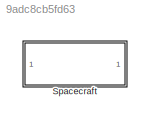
MODEL slx_9adc8cb5fd63
KIND model
CONFIG AbsTol = auto
CONFIG EnableMultiTasking = off
CONFIG FixedStep = auto
CONFIG MaxStep = auto
CONFIG MinStep = auto
CONFIG RelTol = 1e-3
CONFIG SampleTimeConstraint = Unconstrained
CONFIG SolverName = ode15s
CONFIG StartTime = 0.0
CONFIG StopTime = 10
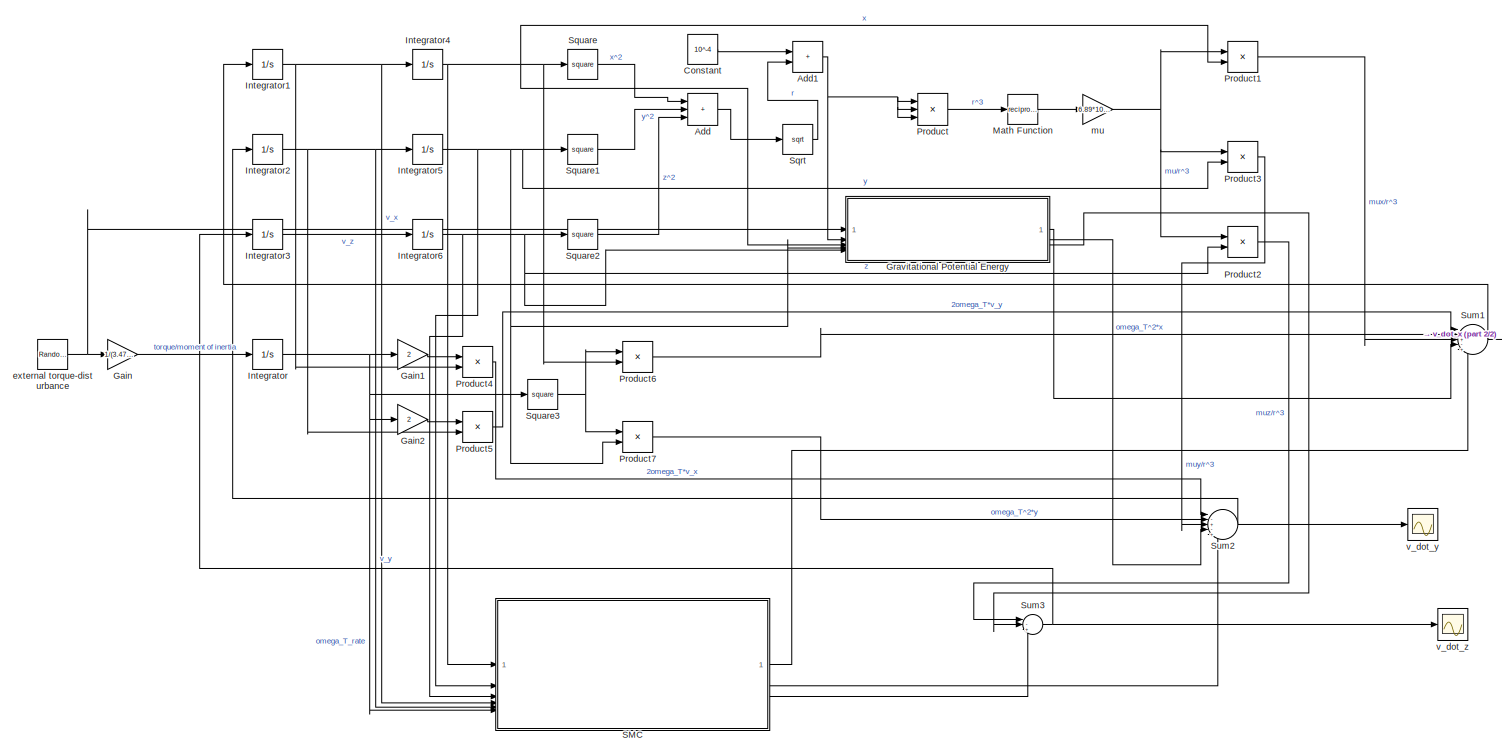
[diagram: Spacecraft - part 1/2, most of the canvas]
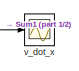
[diagram: Spacecraft - part 2/2, middle right region]
BLOCK [SubSystem] Spacecraft
BLOCK [Sum] Spacecraft/Add
  IconShape = rectangular
  Inputs = +++
BLOCK [Sum] Spacecraft/Add1
  IconShape = rectangular
BLOCK [Constant] Spacecraft/Constant
  Value = 10^-4
BLOCK [Gain] Spacecraft/Gain
  Gain = 1/(3.47*10^26)
BLOCK [Gain] Spacecraft/Gain1
  Gain = 2
BLOCK [Gain] Spacecraft/Gain2
  Gain = 2
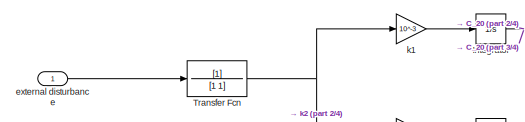
[diagram: Spacecraft/Gravitational Potential Energy - part 1/4, top left region]
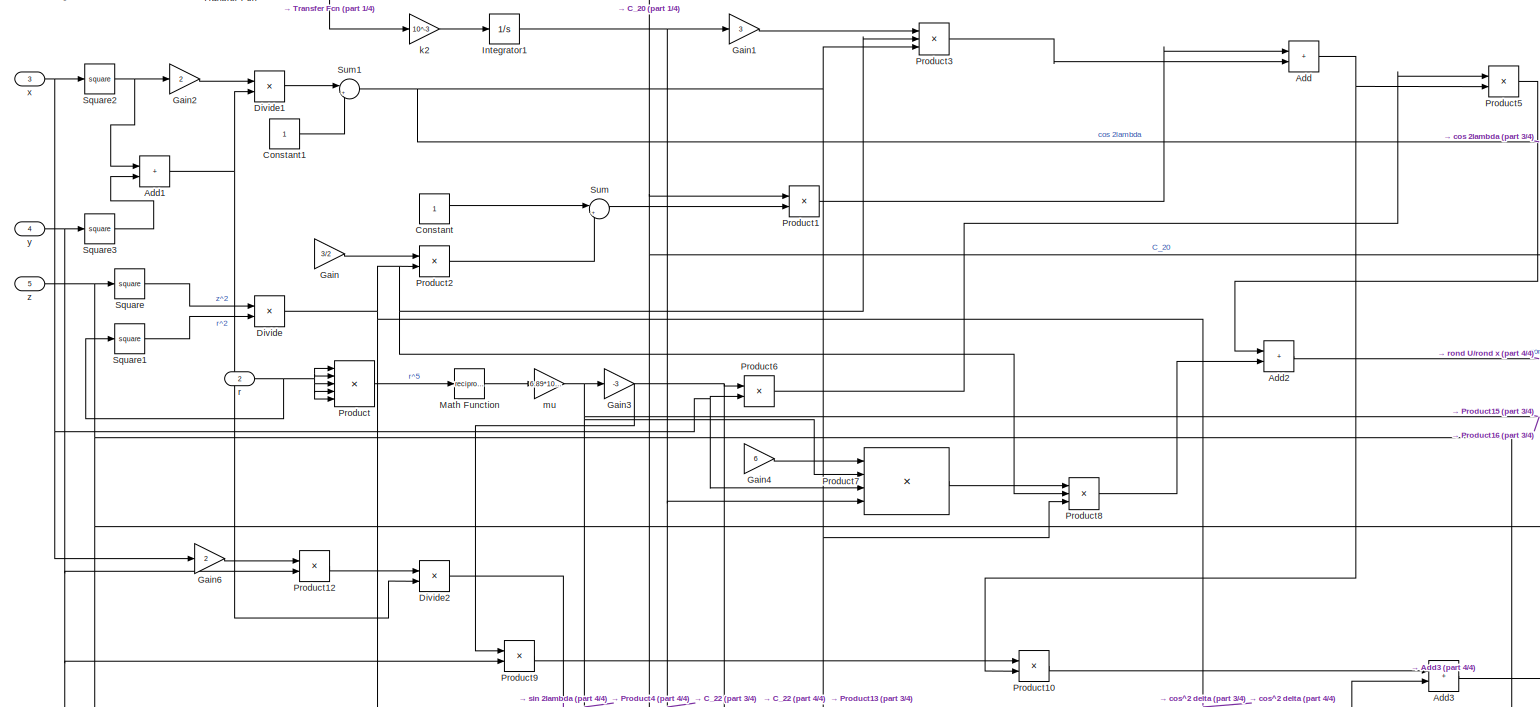
[diagram: Spacecraft/Gravitational Potential Energy - part 2/4, middle left region]
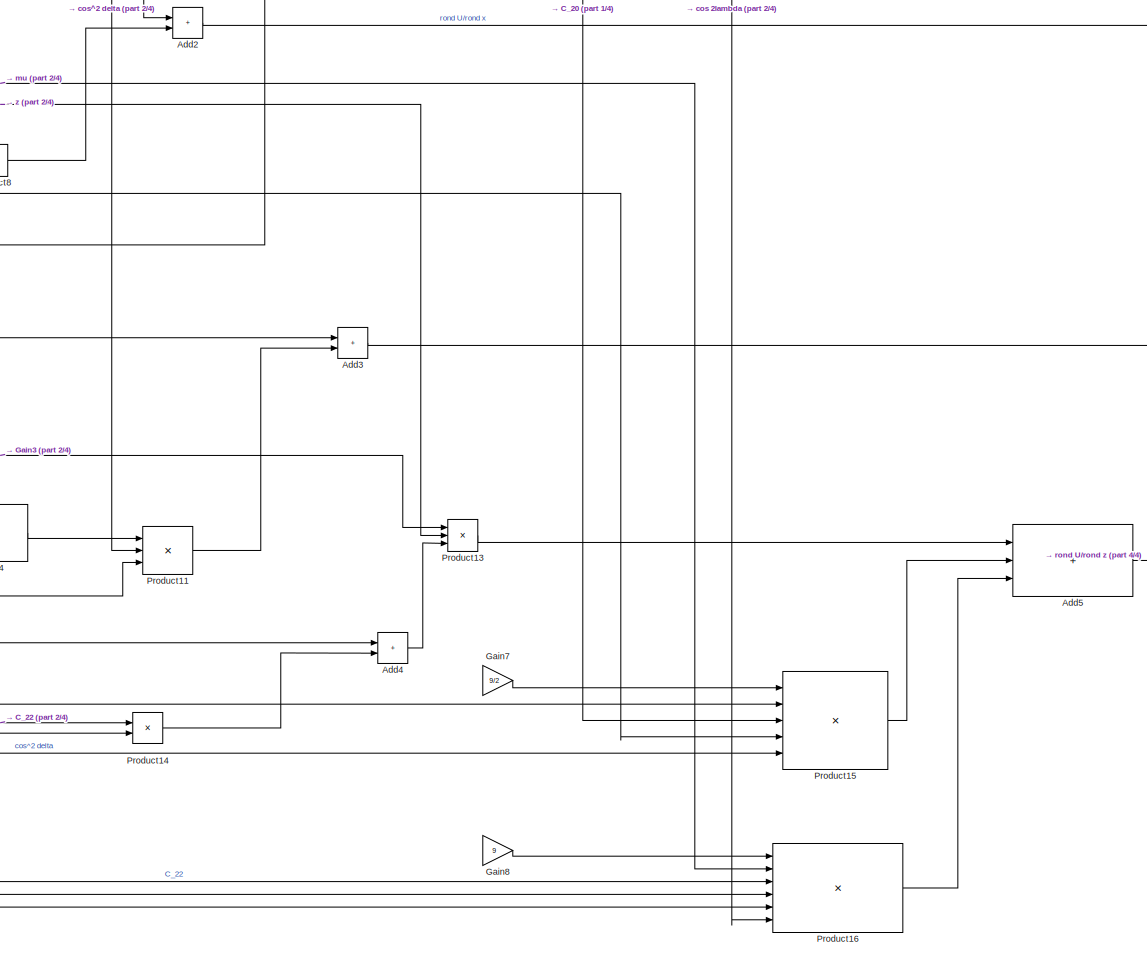
[diagram: Spacecraft/Gravitational Potential Energy - part 3/4, middle right region]
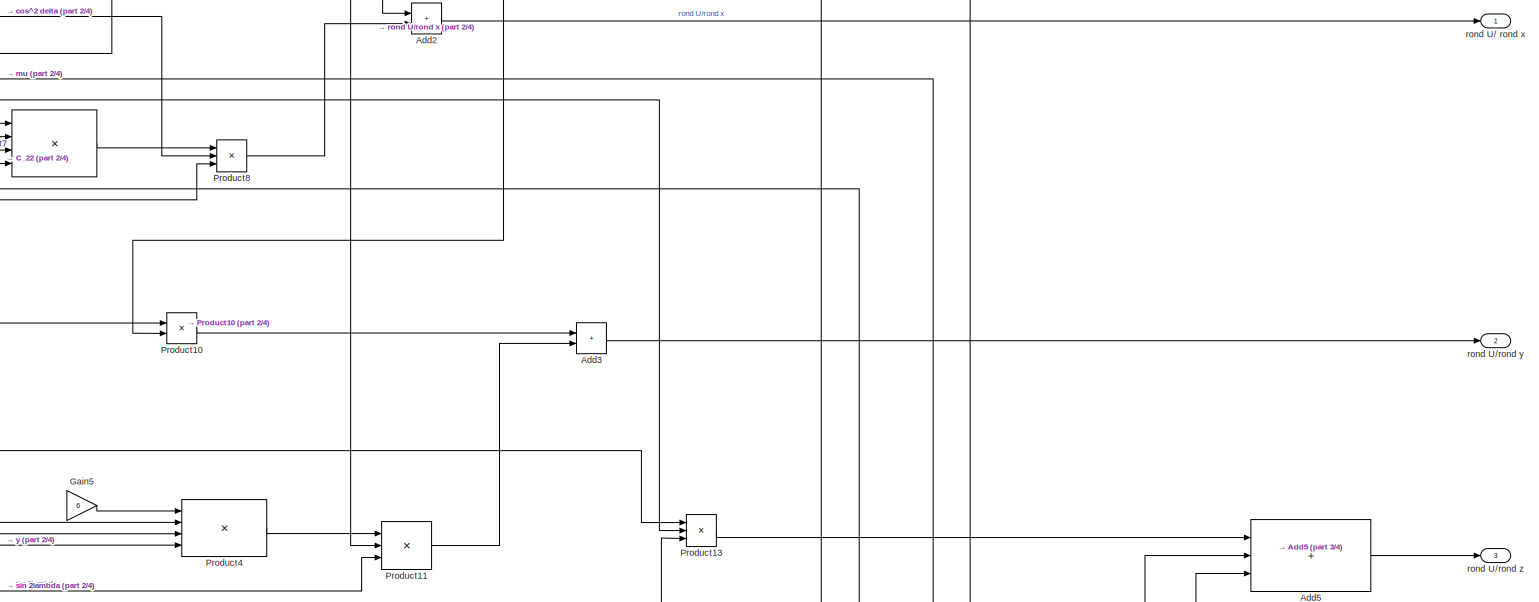
[diagram: Spacecraft/Gravitational Potential Energy - part 4/4, middle right region]
BLOCK [SubSystem] Spacecraft/Gravitational Potential Energy
BLOCK [Sum] Spacecraft/Gravitational Potential Energy/Add
  IconShape = rectangular
BLOCK [Sum] Spacecraft/Gravitational Potential Energy/Add1
  IconShape = rectangular
BLOCK [Sum] Spacecraft/Gravitational Potential Energy/Add2
  IconShape = rectangular
BLOCK [Sum] Spacecraft/Gravitational Potential Energy/Add3
  IconShape = rectangular
BLOCK [Sum] Spacecraft/Gravitational Potential Energy/Add4
  IconShape = rectangular
BLOCK [Sum] Spacecraft/Gravitational Potential Energy/Add5
  IconShape = rectangular
  Inputs = +++
BLOCK [Constant] Spacecraft/Gravitational Potential Energy/Constant
BLOCK [Constant] Spacecraft/Gravitational Potential Energy/Constant1
BLOCK [Product] Spacecraft/Gravitational Potential Energy/Divide
  Inputs = */
BLOCK [Product] Spacecraft/Gravitational Potential Energy/Divide1
  Inputs = */
BLOCK [Product] Spacecraft/Gravitational Potential Energy/Divide2
  Inputs = */
BLOCK [Gain] Spacecraft/Gravitational Potential Energy/Gain
  Gain = 3/2
BLOCK [Gain] Spacecraft/Gravitational Potential Energy/Gain1
  Gain = 3
BLOCK [Gain] Spacecraft/Gravitational Potential Energy/Gain2
  Gain = 2
BLOCK [Gain] Spacecraft/Gravitational Potential Energy/Gain3
  Gain = -3
BLOCK [Gain] Spacecraft/Gravitational Potential Energy/Gain4
  Gain = 6
BLOCK [Gain] Spacecraft/Gravitational Potential Energy/Gain5
  Gain = 6
BLOCK [Gain] Spacecraft/Gravitational Potential Energy/Gain6
  Gain = 2
BLOCK [Gain] Spacecraft/Gravitational Potential Energy/Gain7
  Gain = 9/2
BLOCK [Gain] Spacecraft/Gravitational Potential Energy/Gain8
  Gain = 9
BLOCK [Integrator] Spacecraft/Gravitational Potential Energy/Integrator
  InitialCondition = -0.1
BLOCK [Integrator] Spacecraft/Gravitational Potential Energy/Integrator1
  InitialCondition = 0.02
BLOCK [Math] Spacecraft/Gravitational Potential Energy/Math Function
  Operator = reciprocal
BLOCK [Product] Spacecraft/Gravitational Potential Energy/Product
  Inputs = 5
BLOCK [Product] Spacecraft/Gravitational Potential Energy/Product1
BLOCK [Product] Spacecraft/Gravitational Potential Energy/Product10
BLOCK [Product] Spacecraft/Gravitational Potential Energy/Product11
  Inputs = 3
BLOCK [Product] Spacecraft/Gravitational Potential Energy/Product12
BLOCK [Product] Spacecraft/Gravitational Potential Energy/Product13
  Inputs = 3
BLOCK [Product] Spacecraft/Gravitational Potential Energy/Product14
BLOCK [Product] Spacecraft/Gravitational Potential Energy/Product15
  Inputs = 5
BLOCK [Product] Spacecraft/Gravitational Potential Energy/Product16
  Inputs = 6
BLOCK [Product] Spacecraft/Gravitational Potential Energy/Product2
BLOCK [Product] Spacecraft/Gravitational Potential Energy/Product3
  Inputs = 3
BLOCK [Product] Spacecraft/Gravitational Potential Energy/Product4
  Inputs = 4
BLOCK [Product] Spacecraft/Gravitational Potential Energy/Product5
BLOCK [Product] Spacecraft/Gravitational Potential Energy/Product6
BLOCK [Product] Spacecraft/Gravitational Potential Energy/Product7
  Inputs = 4
BLOCK [Product] Spacecraft/Gravitational Potential Energy/Product8
  Inputs = 3
BLOCK [Product] Spacecraft/Gravitational Potential Energy/Product9
BLOCK [Math] Spacecraft/Gravitational Potential Energy/Square
  Operator = square
BLOCK [Math] Spacecraft/Gravitational Potential Energy/Square1
  Operator = square
BLOCK [Math] Spacecraft/Gravitational Potential Energy/Square2
  Operator = square
BLOCK [Math] Spacecraft/Gravitational Potential Energy/Square3
  Operator = square
BLOCK [Sum] Spacecraft/Gravitational Potential Energy/Sum
  Inputs = |+-
BLOCK [Sum] Spacecraft/Gravitational Potential Energy/Sum1
  Inputs = |+-
BLOCK [TransferFcn] Spacecraft/Gravitational Potential Energy/Transfer Fcn
  Denominator = [1 1]
BLOCK [Inport] Spacecraft/Gravitational Potential Energy/external disturbance
BLOCK [Gain] Spacecraft/Gravitational Potential Energy/k1
  Gain = 10^-3
BLOCK [Gain] Spacecraft/Gravitational Potential Energy/k2
  Gain = 10^-3
BLOCK [Gain] Spacecraft/Gravitational Potential Energy/mu
  Gain = 6.89*10^6
BLOCK [Inport] Spacecraft/Gravitational Potential Energy/r
  Port = 2
BLOCK [Outport] Spacecraft/Gravitational Potential Energy/rond U// rond x
BLOCK [Outport] Spacecraft/Gravitational Potential Energy/rond U//rond y
  Port = 2
BLOCK [Outport] Spacecraft/Gravitational Potential Energy/rond U//rond z
  Port = 3
BLOCK [Inport] Spacecraft/Gravitational Potential Energy/x
  Port = 3
BLOCK [Inport] Spacecraft/Gravitational Potential Energy/y
  Port = 4
BLOCK [Inport] Spacecraft/Gravitational Potential Energy/z
  Port = 5
BLOCK [Integrator] Spacecraft/Integrator
  InitialCondition = 4.17*10^-6
BLOCK [Integrator] Spacecraft/Integrator1
BLOCK [Integrator] Spacecraft/Integrator2
BLOCK [Integrator] Spacecraft/Integrator3
BLOCK [Integrator] Spacecraft/Integrator4
  InitialCondition = 1
BLOCK [Integrator] Spacecraft/Integrator5
  InitialCondition = 1
BLOCK [Integrator] Spacecraft/Integrator6
  InitialCondition = 1
BLOCK [Math] Spacecraft/Math Function
  Operator = reciprocal
BLOCK [Product] Spacecraft/Product
  Inputs = 3
BLOCK [Product] Spacecraft/Product1
BLOCK [Product] Spacecraft/Product2
BLOCK [Product] Spacecraft/Product3
BLOCK [Product] Spacecraft/Product4
BLOCK [Product] Spacecraft/Product5
BLOCK [Product] Spacecraft/Product6
BLOCK [Product] Spacecraft/Product7
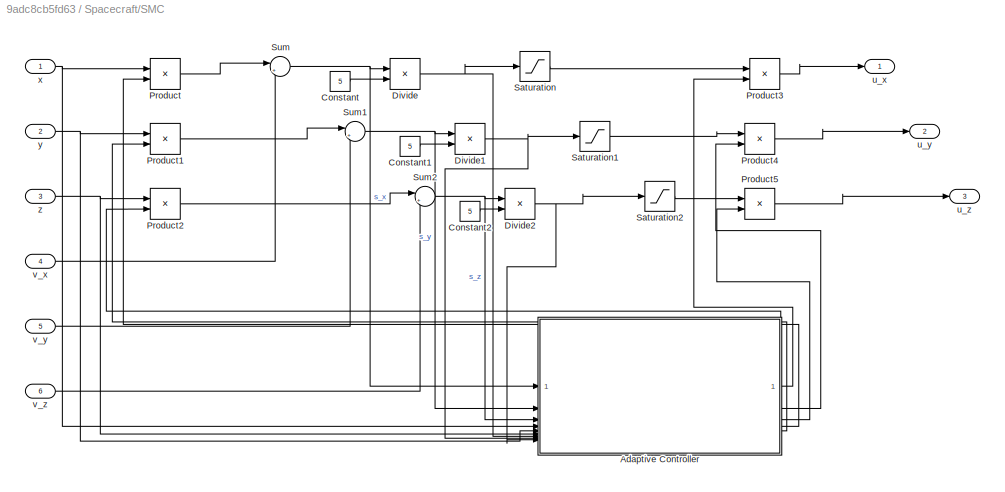
BLOCK [SubSystem] Spacecraft/SMC
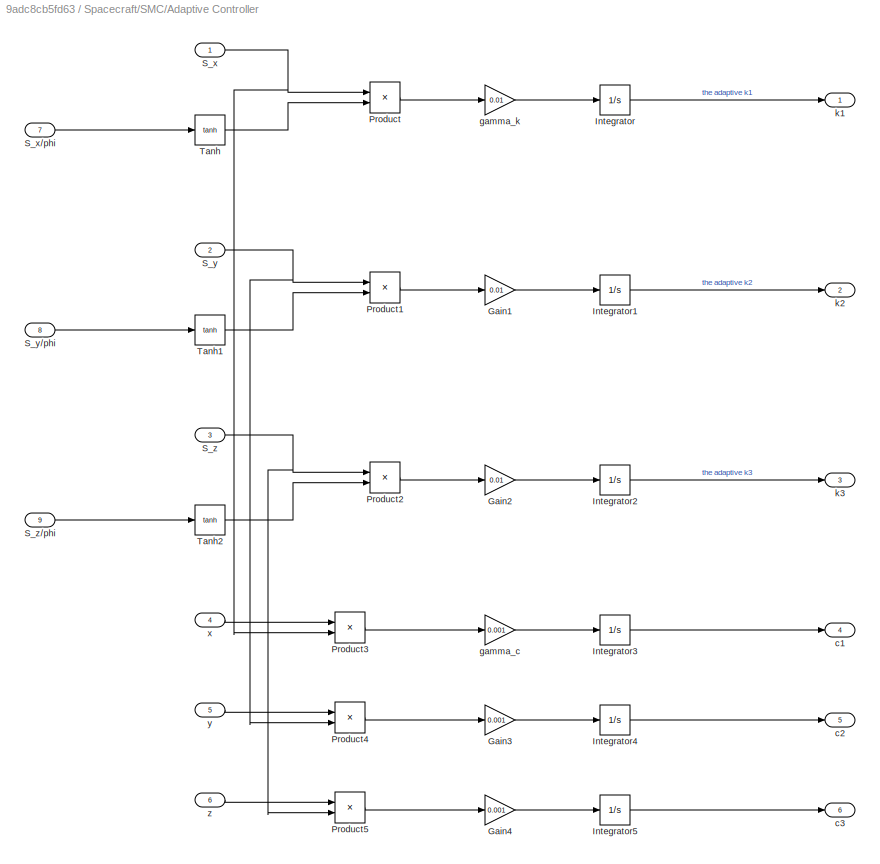
BLOCK [SubSystem] Spacecraft/SMC/Adaptive Controller
BLOCK [Gain] Spacecraft/SMC/Adaptive Controller/Gain1
  Gain = 0.01
BLOCK [Gain] Spacecraft/SMC/Adaptive Controller/Gain2
  Gain = 0.01
BLOCK [Gain] Spacecraft/SMC/Adaptive Controller/Gain3
  Gain = 0.001
BLOCK [Gain] Spacecraft/SMC/Adaptive Controller/Gain4
  Gain = 0.001
BLOCK [Integrator] Spacecraft/SMC/Adaptive Controller/Integrator
  InitialCondition = -10
BLOCK [Integrator] Spacecraft/SMC/Adaptive Controller/Integrator1
  InitialCondition = -10
BLOCK [Integrator] Spacecraft/SMC/Adaptive Controller/Integrator2
  InitialCondition = -10
BLOCK [Integrator] Spacecraft/SMC/Adaptive Controller/Integrator3
  InitialCondition = 4
BLOCK [Integrator] Spacecraft/SMC/Adaptive Controller/Integrator4
  InitialCondition = 4
BLOCK [Integrator] Spacecraft/SMC/Adaptive Controller/Integrator5
  InitialCondition = 4
BLOCK [Product] Spacecraft/SMC/Adaptive Controller/Product
BLOCK [Product] Spacecraft/SMC/Adaptive Controller/Product1
BLOCK [Product] Spacecraft/SMC/Adaptive Controller/Product2
BLOCK [Product] Spacecraft/SMC/Adaptive Controller/Product3
BLOCK [Product] Spacecraft/SMC/Adaptive Controller/Product4
BLOCK [Product] Spacecraft/SMC/Adaptive Controller/Product5
BLOCK [Inport] Spacecraft/SMC/Adaptive Controller/S_x
BLOCK [Inport] Spacecraft/SMC/Adaptive Controller/S_x//phi
  Port = 7
BLOCK [Inport] Spacecraft/SMC/Adaptive Controller/S_y
  Port = 2
BLOCK [Inport] Spacecraft/SMC/Adaptive Controller/S_y//phi
  Port = 8
BLOCK [Inport] Spacecraft/SMC/Adaptive Controller/S_z
  Port = 3
BLOCK [Inport] Spacecraft/SMC/Adaptive Controller/S_z//phi
  Port = 9
BLOCK [Trigonometry] Spacecraft/SMC/Adaptive Controller/Tanh
  Operator = tanh
BLOCK [Trigonometry] Spacecraft/SMC/Adaptive Controller/Tanh1
  Operator = tanh
BLOCK [Trigonometry] Spacecraft/SMC/Adaptive Controller/Tanh2
  Operator = tanh
BLOCK [Outport] Spacecraft/SMC/Adaptive Controller/c1
  Port = 4
BLOCK [Outport] Spacecraft/SMC/Adaptive Controller/c2
  Port = 5
BLOCK [Outport] Spacecraft/SMC/Adaptive Controller/c3
  Port = 6
BLOCK [Gain] Spacecraft/SMC/Adaptive Controller/gamma_c
  Gain = 0.001
BLOCK [Gain] Spacecraft/SMC/Adaptive Controller/gamma_k
  Gain = 0.01
BLOCK [Outport] Spacecraft/SMC/Adaptive Controller/k1
BLOCK [Outport] Spacecraft/SMC/Adaptive Controller/k2
  Port = 2
BLOCK [Outport] Spacecraft/SMC/Adaptive Controller/k3
  Port = 3
BLOCK [Inport] Spacecraft/SMC/Adaptive Controller/x
  Port = 4
BLOCK [Inport] Spacecraft/SMC/Adaptive Controller/y
  Port = 5
BLOCK [Inport] Spacecraft/SMC/Adaptive Controller/z
  Port = 6
BLOCK [Constant] Spacecraft/SMC/Constant
  Value = 5
BLOCK [Constant] Spacecraft/SMC/Constant1
  Value = 5
BLOCK [Constant] Spacecraft/SMC/Constant2
  Value = 5
BLOCK [Product] Spacecraft/SMC/Divide
  Inputs = */
BLOCK [Product] Spacecraft/SMC/Divide1
  Inputs = */
BLOCK [Product] Spacecraft/SMC/Divide2
  Inputs = */
BLOCK [Product] Spacecraft/SMC/Product
BLOCK [Product] Spacecraft/SMC/Product1
BLOCK [Product] Spacecraft/SMC/Product2
BLOCK [Product] Spacecraft/SMC/Product3
BLOCK [Product] Spacecraft/SMC/Product4
BLOCK [Product] Spacecraft/SMC/Product5
BLOCK [Saturate] Spacecraft/SMC/Saturation
  LowerLimit = -1
  UpperLimit = +1
BLOCK [Saturate] Spacecraft/SMC/Saturation1
  LowerLimit = -1
  UpperLimit = +1
BLOCK [Saturate] Spacecraft/SMC/Saturation2
  LowerLimit = -1
  UpperLimit = +1
BLOCK [Sum] Spacecraft/SMC/Sum
  Inputs = |++
BLOCK [Sum] Spacecraft/SMC/Sum1
  Inputs = |++
BLOCK [Sum] Spacecraft/SMC/Sum2
  Inputs = |++
BLOCK [Outport] Spacecraft/SMC/u_x
BLOCK [Outport] Spacecraft/SMC/u_y
  Port = 2
BLOCK [Outport] Spacecraft/SMC/u_z
  Port = 3
BLOCK [Inport] Spacecraft/SMC/v_x
  Port = 4
BLOCK [Inport] Spacecraft/SMC/v_y
  Port = 5
BLOCK [Inport] Spacecraft/SMC/v_z
  Port = 6
BLOCK [Inport] Spacecraft/SMC/x
BLOCK [Inport] Spacecraft/SMC/y
  Port = 2
BLOCK [Inport] Spacecraft/SMC/z
  Port = 3
BLOCK [Sqrt] Spacecraft/Sqrt
BLOCK [Math] Spacecraft/Square
  Operator = square
BLOCK [Math] Spacecraft/Square1
  Operator = square
BLOCK [Math] Spacecraft/Square2
  Operator = square
BLOCK [Math] Spacecraft/Square3
  Operator = square
BLOCK [Sum] Spacecraft/Sum1
  Inputs = |++-++
BLOCK [Sum] Spacecraft/Sum2
  Inputs = |-+-++
BLOCK [Sum] Spacecraft/Sum3
  Inputs = |-++
BLOCK [RandomNumber] Spacecraft/external torque-disturbance
  SampleTime = 0.1
  Variance = 10^-12
BLOCK [Gain] Spacecraft/mu
  Gain = 6.89*10^6
BLOCK [Scope] Spacecraft/v_dot_x
  Floating = off
  NumInputPorts = 1
  ScopeSpecificationString = Simulink.scopes.TimeScopeBlockCfg('CurrentConfiguration', extmgr.ConfigurationSet(extmgr.Configuration('Core','General UI',true),extmgr.Configuration('Core','Source UI',true),extmgr.Configuration('Sources','WiredSimulink',true),extmgr.Configuration('Visuals','Time Domain',true,'SerializedDisplays',{struct('MinYLimReal','-9305362.17024','MaxYLimReal','50488203.84115','YLabelReal','','MinYLimMag',' ...<+1429ch>
BLOCK [Scope] Spacecraft/v_dot_y
  Floating = off
  NumInputPorts = 1
  ScopeSpecificationString = Simulink.scopes.TimeScopeBlockCfg('CurrentConfiguration', extmgr.ConfigurationSet(extmgr.Configuration('Core','General UI',true),extmgr.Configuration('Core','Source UI',true),extmgr.Configuration('Sources','WiredSimulink',true,'DataLoggingVariableName','ScopeData1'),extmgr.Configuration('Visuals','Time Domain',true,'SerializedDisplays',{struct('MinYLimReal','-9305360.75381','MaxYLimReal','50488204...<+1468ch>
BLOCK [Scope] Spacecraft/v_dot_z
  Floating = off
  NumInputPorts = 1
  ScopeSpecificationString = Simulink.scopes.TimeScopeBlockCfg('CurrentConfiguration', extmgr.ConfigurationSet(extmgr.Configuration('Core','General UI',true),extmgr.Configuration('Core','Source UI',true),extmgr.Configuration('Sources','WiredSimulink',true,'DataLoggingVariableName','ScopeData2'),extmgr.Configuration('Visuals','Time Domain',true,'SerializedDisplays',{struct('MinYLimReal','-9291880.36499','MaxYLimReal','50484687...<+1468ch>
NET Spacecraft/Add1:1 -> Spacecraft/Gravitational Potential Energy:2, Spacecraft/Product:1, Spacecraft/Product:2, Spacecraft/Product:3
LINE Spacecraft/Add:1 -> Spacecraft/Sqrt:1
LINE Spacecraft/Constant:1 -> Spacecraft/Add1:1
LINE Spacecraft/Gain1:1 -> Spacecraft/Product4:1
LINE Spacecraft/Gain2:1 -> Spacecraft/Product5:1
LINE Spacecraft/Gain:1 -> Spacecraft/Integrator:1
NET Spacecraft/Gravitational Potential Energy/Add1:1 -> Spacecraft/Gravitational Potential Energy/Divide1:2, Spacecraft/Gravitational Potential Energy/Divide2:2
LINE Spacecraft/Gravitational Potential Energy/Add2:1 -> Spacecraft/Gravitational Potential Energy/rond U// rond x:1
LINE Spacecraft/Gravitational Potential Energy/Add3:1 -> Spacecraft/Gravitational Potential Energy/rond U//rond y:1
LINE Spacecraft/Gravitational Potential Energy/Add4:1 -> Spacecraft/Gravitational Potential Energy/Product13:3
LINE Spacecraft/Gravitational Potential Energy/Add5:1 -> Spacecraft/Gravitational Potential Energy/rond U//rond z:1
NET Spacecraft/Gravitational Potential Energy/Add:1 -> Spacecraft/Gravitational Potential Energy/Product10:2, Spacecraft/Gravitational Potential Energy/Product5:2
LINE Spacecraft/Gravitational Potential Energy/Constant1:1 -> Spacecraft/Gravitational Potential Energy/Sum1:2
LINE Spacecraft/Gravitational Potential Energy/Constant:1 -> Spacecraft/Gravitational Potential Energy/Sum:1
LINE Spacecraft/Gravitational Potential Energy/Divide1:1 -> Spacecraft/Gravitational Potential Energy/Sum1:1
LINE Spacecraft/Gravitational Potential Energy/Divide2:1 -> Spacecraft/Gravitational Potential Energy/Product11:3
NET Spacecraft/Gravitational Potential Energy/Divide:1 -> Spacecraft/Gravitational Potential Energy/Product11:2, Spacecraft/Gravitational Potential Energy/Product15:5, Spacecraft/Gravitational Potential Energy/Product16:5, Spacecraft/Gravitational Potential Energy/Product2:2, Spacecraft/Gravitational Potential Energy/Product3:2, Spacecraft/Gravitational Potential Energy/Product8:2
LINE Spacecraft/Gravitational Potential Energy/Gain1:1 -> Spacecraft/Gravitational Potential Energy/Product3:1
LINE Spacecraft/Gravitational Potential Energy/Gain2:1 -> Spacecraft/Gravitational Potential Energy/Divide1:1
NET Spacecraft/Gravitational Potential Energy/Gain3:1 -> Spacecraft/Gravitational Potential Energy/Product13:1, Spacecraft/Gravitational Potential Energy/Product6:1, Spacecraft/Gravitational Potential Energy/Product9:1
LINE Spacecraft/Gravitational Potential Energy/Gain4:1 -> Spacecraft/Gravitational Potential Energy/Product7:1
LINE Spacecraft/Gravitational Potential Energy/Gain5:1 -> Spacecraft/Gravitational Potential Energy/Product4:1
LINE Spacecraft/Gravitational Potential Energy/Gain6:1 -> Spacecraft/Gravitational Potential Energy/Product12:1
LINE Spacecraft/Gravitational Potential Energy/Gain7:1 -> Spacecraft/Gravitational Potential Energy/Product15:1
LINE Spacecraft/Gravitational Potential Energy/Gain8:1 -> Spacecraft/Gravitational Potential Energy/Product16:1
LINE Spacecraft/Gravitational Potential Energy/Gain:1 -> Spacecraft/Gravitational Potential Energy/Product2:1
NET Spacecraft/Gravitational Potential Energy/Integrator1:1 -> Spacecraft/Gravitational Potential Energy/Gain1:1, Spacecraft/Gravitational Potential Energy/Product14:1, Spacecraft/Gravitational Potential Energy/Product16:3, Spacecraft/Gravitational Potential Energy/Product4:3, Spacecraft/Gravitational Potential Energy/Product7:4
NET Spacecraft/Gravitational Potential Energy/Integrator:1 -> Spacecraft/Gravitational Potential Energy/Add4:1, Spacecraft/Gravitational Potential Energy/Product15:3, Spacecraft/Gravitational Potential Energy/Product1:1
LINE Spacecraft/Gravitational Potential Energy/Math Function:1 -> Spacecraft/Gravitational Potential Energy/mu:1
LINE Spacecraft/Gravitational Potential Energy/Product10:1 -> Spacecraft/Gravitational Potential Energy/Add3:1
LINE Spacecraft/Gravitational Potential Energy/Product11:1 -> Spacecraft/Gravitational Potential Energy/Add3:2
LINE Spacecraft/Gravitational Potential Energy/Product12:1 -> Spacecraft/Gravitational Potential Energy/Divide2:1
LINE Spacecraft/Gravitational Potential Energy/Product13:1 -> Spacecraft/Gravitational Potential Energy/Add5:1
LINE Spacecraft/Gravitational Potential Energy/Product14:1 -> Spacecraft/Gravitational Potential Energy/Add4:2
LINE Spacecraft/Gravitational Potential Energy/Product15:1 -> Spacecraft/Gravitational Potential Energy/Add5:2
LINE Spacecraft/Gravitational Potential Energy/Product16:1 -> Spacecraft/Gravitational Potential Energy/Add5:3
LINE Spacecraft/Gravitational Potential Energy/Product1:1 -> Spacecraft/Gravitational Potential Energy/Add:1
LINE Spacecraft/Gravitational Potential Energy/Product2:1 -> Spacecraft/Gravitational Potential Energy/Sum:2
LINE Spacecraft/Gravitational Potential Energy/Product3:1 -> Spacecraft/Gravitational Potential Energy/Add:2
LINE Spacecraft/Gravitational Potential Energy/Product4:1 -> Spacecraft/Gravitational Potential Energy/Product11:1
LINE Spacecraft/Gravitational Potential Energy/Product5:1 -> Spacecraft/Gravitational Potential Energy/Add2:1
LINE Spacecraft/Gravitational Potential Energy/Product6:1 -> Spacecraft/Gravitational Potential Energy/Product5:1
LINE Spacecraft/Gravitational Potential Energy/Product7:1 -> Spacecraft/Gravitational Potential Energy/Product8:1
LINE Spacecraft/Gravitational Potential Energy/Product8:1 -> Spacecraft/Gravitational Potential Energy/Add2:2
LINE Spacecraft/Gravitational Potential Energy/Product9:1 -> Spacecraft/Gravitational Potential Energy/Product10:1
LINE Spacecraft/Gravitational Potential Energy/Product:1 -> Spacecraft/Gravitational Potential Energy/Math Function:1
LINE Spacecraft/Gravitational Potential Energy/Square1:1 -> Spacecraft/Gravitational Potential Energy/Divide:2
NET Spacecraft/Gravitational Potential Energy/Square2:1 -> Spacecraft/Gravitational Potential Energy/Add1:1, Spacecraft/Gravitational Potential Energy/Gain2:1
LINE Spacecraft/Gravitational Potential Energy/Square3:1 -> Spacecraft/Gravitational Potential Energy/Add1:2
LINE Spacecraft/Gravitational Potential Energy/Square:1 -> Spacecraft/Gravitational Potential Energy/Divide:1
NET Spacecraft/Gravitational Potential Energy/Sum1:1 -> Spacecraft/Gravitational Potential Energy/Product14:2, Spacecraft/Gravitational Potential Energy/Product16:6, Spacecraft/Gravitational Potential Energy/Product3:3, Spacecraft/Gravitational Potential Energy/Product8:3
LINE Spacecraft/Gravitational Potential Energy/Sum:1 -> Spacecraft/Gravitational Potential Energy/Product1:2
NET Spacecraft/Gravitational Potential Energy/Transfer Fcn:1 -> Spacecraft/Gravitational Potential Energy/k1:1, Spacecraft/Gravitational Potential Energy/k2:1
LINE Spacecraft/Gravitational Potential Energy/external disturbance:1 -> Spacecraft/Gravitational Potential Energy/Transfer Fcn:1
LINE Spacecraft/Gravitational Potential Energy/k1:1 -> Spacecraft/Gravitational Potential Energy/Integrator:1
LINE Spacecraft/Gravitational Potential Energy/k2:1 -> Spacecraft/Gravitational Potential Energy/Integrator1:1
NET Spacecraft/Gravitational Potential Energy/mu:1 -> Spacecraft/Gravitational Potential Energy/Gain3:1, Spacecraft/Gravitational Potential Energy/Product15:2, Spacecraft/Gravitational Potential Energy/Product16:2, Spacecraft/Gravitational Potential Energy/Product4:2, Spacecraft/Gravitational Potential Energy/Product7:2
NET Spacecraft/Gravitational Potential Energy/r:1 -> Spacecraft/Gravitational Potential Energy/Product:1, Spacecraft/Gravitational Potential Energy/Product:2, Spacecraft/Gravitational Potential Energy/Product:3, Spacecraft/Gravitational Potential Energy/Product:4, Spacecraft/Gravitational Potential Energy/Product:5, Spacecraft/Gravitational Potential Energy/Square1:1
NET Spacecraft/Gravitational Potential Energy/x:1 -> Spacecraft/Gravitational Potential Energy/Gain6:1, Spacecraft/Gravitational Potential Energy/Product6:2, Spacecraft/Gravitational Potential Energy/Product7:3, Spacecraft/Gravitational Potential Energy/Square2:1
NET Spacecraft/Gravitational Potential Energy/y:1 -> Spacecraft/Gravitational Potential Energy/Product12:2, Spacecraft/Gravitational Potential Energy/Product4:4, Spacecraft/Gravitational Potential Energy/Product9:2, Spacecraft/Gravitational Potential Energy/Square3:1
NET Spacecraft/Gravitational Potential Energy/z:1 -> Spacecraft/Gravitational Potential Energy/Product13:2, Spacecraft/Gravitational Potential Energy/Product15:4, Spacecraft/Gravitational Potential Energy/Product16:4, Spacecraft/Gravitational Potential Energy/Square:1
LINE Spacecraft/Gravitational Potential Energy:1 -> Spacecraft/Sum1:4
LINE Spacecraft/Gravitational Potential Energy:2 -> Spacecraft/Sum2:4
LINE Spacecraft/Gravitational Potential Energy:3 -> Spacecraft/Sum3:2
NET Spacecraft/Integrator1:1 -> Spacecraft/Integrator4:1, Spacecraft/Product4:2, Spacecraft/SMC:4
NET Spacecraft/Integrator2:1 -> Spacecraft/Integrator5:1, Spacecraft/Product5:2, Spacecraft/SMC:5
LINE Spacecraft/Integrator3:1 -> Spacecraft/Integrator6:1
NET Spacecraft/Integrator4:1 -> Spacecraft/Gravitational Potential Energy:3, Spacecraft/Product1:2, Spacecraft/Product6:2, Spacecraft/SMC:1, Spacecraft/Square:1
NET Spacecraft/Integrator5:1 -> Spacecraft/Gravitational Potential Energy:4, Spacecraft/Product3:2, Spacecraft/Product7:2, Spacecraft/SMC:2, Spacecraft/Square1:1
NET Spacecraft/Integrator6:1 -> Spacecraft/Gravitational Potential Energy:5, Spacecraft/Product2:2, Spacecraft/SMC:3, Spacecraft/Square2:1
NET Spacecraft/Integrator:1 -> Spacecraft/Gain1:1, Spacecraft/Gain2:1, Spacecraft/SMC:6, Spacecraft/Square3:1
LINE Spacecraft/Math Function:1 -> Spacecraft/mu:1
LINE Spacecraft/Product1:1 -> Spacecraft/Sum1:3
LINE Spacecraft/Product2:1 -> Spacecraft/Sum3:1
LINE Spacecraft/Product3:1 -> Spacecraft/Sum2:3
LINE Spacecraft/Product4:1 -> Spacecraft/Sum2:1
LINE Spacecraft/Product5:1 -> Spacecraft/Sum1:1
LINE Spacecraft/Product6:1 -> Spacecraft/Sum1:2
LINE Spacecraft/Product7:1 -> Spacecraft/Sum2:2
LINE Spacecraft/Product:1 -> Spacecraft/Math Function:1
LINE Spacecraft/SMC/Adaptive Controller/Gain1:1 -> Spacecraft/SMC/Adaptive Controller/Integrator1:1
LINE Spacecraft/SMC/Adaptive Controller/Gain2:1 -> Spacecraft/SMC/Adaptive Controller/Integrator2:1
LINE Spacecraft/SMC/Adaptive Controller/Gain3:1 -> Spacecraft/SMC/Adaptive Controller/Integrator4:1
LINE Spacecraft/SMC/Adaptive Controller/Gain4:1 -> Spacecraft/SMC/Adaptive Controller/Integrator5:1
LINE Spacecraft/SMC/Adaptive Controller/Integrator1:1 -> Spacecraft/SMC/Adaptive Controller/k2:1
LINE Spacecraft/SMC/Adaptive Controller/Integrator2:1 -> Spacecraft/SMC/Adaptive Controller/k3:1
LINE Spacecraft/SMC/Adaptive Controller/Integrator3:1 -> Spacecraft/SMC/Adaptive Controller/c1:1
LINE Spacecraft/SMC/Adaptive Controller/Integrator4:1 -> Spacecraft/SMC/Adaptive Controller/c2:1
LINE Spacecraft/SMC/Adaptive Controller/Integrator5:1 -> Spacecraft/SMC/Adaptive Controller/c3:1
LINE Spacecraft/SMC/Adaptive Controller/Integrator:1 -> Spacecraft/SMC/Adaptive Controller/k1:1
LINE Spacecraft/SMC/Adaptive Controller/Product1:1 -> Spacecraft/SMC/Adaptive Controller/Gain1:1
LINE Spacecraft/SMC/Adaptive Controller/Product2:1 -> Spacecraft/SMC/Adaptive Controller/Gain2:1
LINE Spacecraft/SMC/Adaptive Controller/Product3:1 -> Spacecraft/SMC/Adaptive Controller/gamma_c:1
LINE Spacecraft/SMC/Adaptive Controller/Product4:1 -> Spacecraft/SMC/Adaptive Controller/Gain3:1
LINE Spacecraft/SMC/Adaptive Controller/Product5:1 -> Spacecraft/SMC/Adaptive Controller/Gain4:1
LINE Spacecraft/SMC/Adaptive Controller/Product:1 -> Spacecraft/SMC/Adaptive Controller/gamma_k:1
LINE Spacecraft/SMC/Adaptive Controller/S_x//phi:1 -> Spacecraft/SMC/Adaptive Controller/Tanh:1
NET Spacecraft/SMC/Adaptive Controller/S_x:1 -> Spacecraft/SMC/Adaptive Controller/Product3:2, Spacecraft/SMC/Adaptive Controller/Product:1
LINE Spacecraft/SMC/Adaptive Controller/S_y//phi:1 -> Spacecraft/SMC/Adaptive Controller/Tanh1:1
NET Spacecraft/SMC/Adaptive Controller/S_y:1 -> Spacecraft/SMC/Adaptive Controller/Product1:1, Spacecraft/SMC/Adaptive Controller/Product4:2
LINE Spacecraft/SMC/Adaptive Controller/S_z//phi:1 -> Spacecraft/SMC/Adaptive Controller/Tanh2:1
NET Spacecraft/SMC/Adaptive Controller/S_z:1 -> Spacecraft/SMC/Adaptive Controller/Product2:1, Spacecraft/SMC/Adaptive Controller/Product5:2
LINE Spacecraft/SMC/Adaptive Controller/Tanh1:1 -> Spacecraft/SMC/Adaptive Controller/Product1:2
LINE Spacecraft/SMC/Adaptive Controller/Tanh2:1 -> Spacecraft/SMC/Adaptive Controller/Product2:2
LINE Spacecraft/SMC/Adaptive Controller/Tanh:1 -> Spacecraft/SMC/Adaptive Controller/Product:2
LINE Spacecraft/SMC/Adaptive Controller/gamma_c:1 -> Spacecraft/SMC/Adaptive Controller/Integrator3:1
LINE Spacecraft/SMC/Adaptive Controller/gamma_k:1 -> Spacecraft/SMC/Adaptive Controller/Integrator:1
LINE Spacecraft/SMC/Adaptive Controller/x:1 -> Spacecraft/SMC/Adaptive Controller/Product3:1
LINE Spacecraft/SMC/Adaptive Controller/y:1 -> Spacecraft/SMC/Adaptive Controller/Product4:1
LINE Spacecraft/SMC/Adaptive Controller/z:1 -> Spacecraft/SMC/Adaptive Controller/Product5:1
LINE Spacecraft/SMC/Adaptive Controller:1 -> Spacecraft/SMC/Product3:2
LINE Spacecraft/SMC/Adaptive Controller:2 -> Spacecraft/SMC/Product4:2
LINE Spacecraft/SMC/Adaptive Controller:3 -> Spacecraft/SMC/Product5:2
LINE Spacecraft/SMC/Adaptive Controller:4 -> Spacecraft/SMC/Product:2
LINE Spacecraft/SMC/Adaptive Controller:5 -> Spacecraft/SMC/Product1:2
LINE Spacecraft/SMC/Adaptive Controller:6 -> Spacecraft/SMC/Product2:2
LINE Spacecraft/SMC/Constant1:1 -> Spacecraft/SMC/Divide1:2
LINE Spacecraft/SMC/Constant2:1 -> Spacecraft/SMC/Divide2:2
LINE Spacecraft/SMC/Constant:1 -> Spacecraft/SMC/Divide:2
NET Spacecraft/SMC/Divide1:1 -> Spacecraft/SMC/Adaptive Controller:8, Spacecraft/SMC/Saturation1:1
NET Spacecraft/SMC/Divide2:1 -> Spacecraft/SMC/Adaptive Controller:9, Spacecraft/SMC/Saturation2:1
NET Spacecraft/SMC/Divide:1 -> Spacecraft/SMC/Adaptive Controller:7, Spacecraft/SMC/Saturation:1
LINE Spacecraft/SMC/Product1:1 -> Spacecraft/SMC/Sum1:1
LINE Spacecraft/SMC/Product2:1 -> Spacecraft/SMC/Sum2:1
LINE Spacecraft/SMC/Product3:1 -> Spacecraft/SMC/u_x:1
LINE Spacecraft/SMC/Product4:1 -> Spacecraft/SMC/u_y:1
LINE Spacecraft/SMC/Product5:1 -> Spacecraft/SMC/u_z:1
LINE Spacecraft/SMC/Product:1 -> Spacecraft/SMC/Sum:1
LINE Spacecraft/SMC/Saturation1:1 -> Spacecraft/SMC/Product4:1
LINE Spacecraft/SMC/Saturation2:1 -> Spacecraft/SMC/Product5:1
LINE Spacecraft/SMC/Saturation:1 -> Spacecraft/SMC/Product3:1
NET Spacecraft/SMC/Sum1:1 -> Spacecraft/SMC/Adaptive Controller:2, Spacecraft/SMC/Divide1:1
NET Spacecraft/SMC/Sum2:1 -> Spacecraft/SMC/Adaptive Controller:3, Spacecraft/SMC/Divide2:1
NET Spacecraft/SMC/Sum:1 -> Spacecraft/SMC/Adaptive Controller:1, Spacecraft/SMC/Divide:1
LINE Spacecraft/SMC/v_x:1 -> Spacecraft/SMC/Sum:2
LINE Spacecraft/SMC/v_y:1 -> Spacecraft/SMC/Sum1:2
LINE Spacecraft/SMC/v_z:1 -> Spacecraft/SMC/Sum2:2
NET Spacecraft/SMC/x:1 -> Spacecraft/SMC/Adaptive Controller:4, Spacecraft/SMC/Product:1
NET Spacecraft/SMC/y:1 -> Spacecraft/SMC/Adaptive Controller:5, Spacecraft/SMC/Product1:1
NET Spacecraft/SMC/z:1 -> Spacecraft/SMC/Adaptive Controller:6, Spacecraft/SMC/Product2:1
LINE Spacecraft/SMC:1 -> Spacecraft/Sum1:5
LINE Spacecraft/SMC:2 -> Spacecraft/Sum2:5
LINE Spacecraft/SMC:3 -> Spacecraft/Sum3:3
LINE Spacecraft/Sqrt:1 -> Spacecraft/Add1:2
LINE Spacecraft/Square1:1 -> Spacecraft/Add:2
LINE Spacecraft/Square2:1 -> Spacecraft/Add:3
NET Spacecraft/Square3:1 -> Spacecraft/Product6:1, Spacecraft/Product7:1
LINE Spacecraft/Square:1 -> Spacecraft/Add:1
NET Spacecraft/Sum1:1 -> Spacecraft/Integrator1:1, Spacecraft/v_dot_x:1
NET Spacecraft/Sum2:1 -> Spacecraft/Integrator2:1, Spacecraft/v_dot_y:1
NET Spacecraft/Sum3:1 -> Spacecraft/Integrator3:1, Spacecraft/v_dot_z:1
NET Spacecraft/external torque-disturbance:1 -> Spacecraft/Gain:1, Spacecraft/Gravitational Potential Energy:1
NET Spacecraft/mu:1 -> Spacecraft/Product1:1, Spacecraft/Product2:1, Spacecraft/Product3:1
note: NET lines group one-source signal fan-out (src -> all destinations, sorted); 1:1 wires keep LINE
